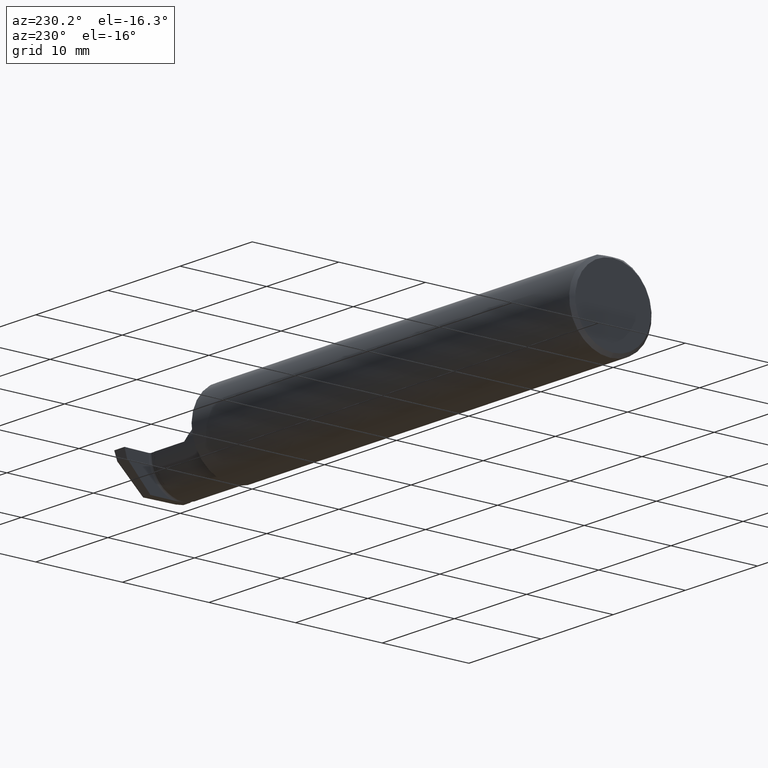
[diagram: clean part render]
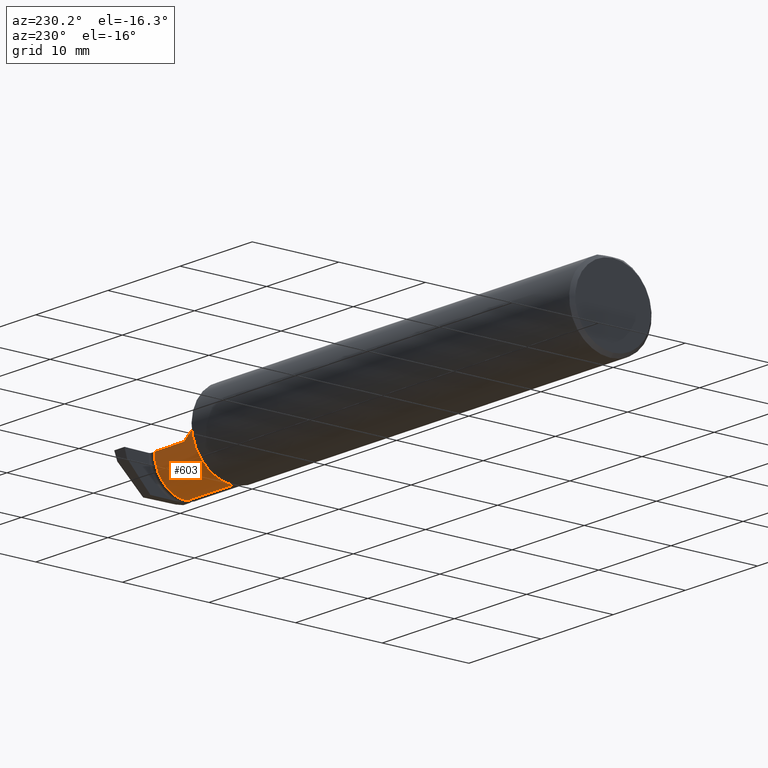
[diagram: same view with one face highlighted and labeled with its STEP entity id]
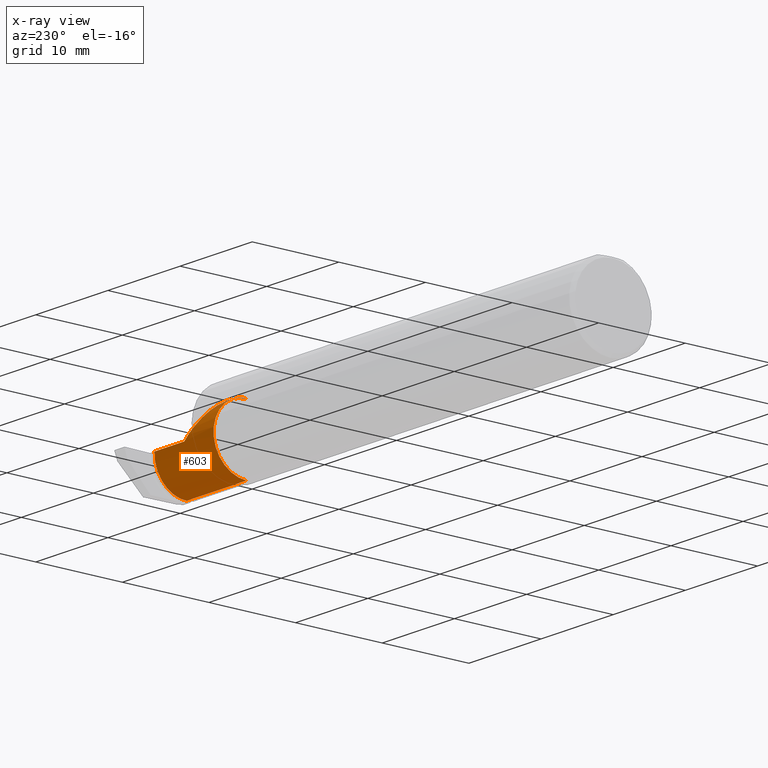
[diagram: x-ray of the same camera — body ghosted, the highlighted face saturated]
A machine part, auxiliary view. The second image highlights one B-rep face of the part: STEP entity #603.
The next image is the same camera in x-ray: the body ghosted, the highlighted face saturated — about 1% of this face is hidden behind the body in this view.
In plain terms, the highlighted cylindrical surface (partial cylindrical patch) has radius 3.81 mm, axis along (-1, -0, -0).
Its self-contained STEP definition (entity closure, byte-faithful):
#31 = ORIENTED_EDGE ( 'NONE', *, *, #769, .T. ) ;
#40 = ORIENTED_EDGE ( 'NONE', *, *, #558, .T. ) ;
#45 = EDGE_CURVE ( 'NONE', #578, #526, #138, .T. ) ;
#57 = CARTESIAN_POINT ( 'NONE',  ( 2.427601074765497469, -0.04414771950626092401, -0.1461247685152796405 ) ) ;
#63 = CARTESIAN_POINT ( 'NONE',  ( 2.427802735541692680, -0.08335000000000178377, -0.1499999999999999667 ) ) ;
#71 = CARTESIAN_POINT ( 'NONE',  ( 2.075000000000000178, -0.08334999999999996578, 0.1499999999999999944 ) ) ;
#87 = CARTESIAN_POINT ( 'NONE',  ( 2.172132034355964691, 0.06665000000000004254, 0.08786796564403576149 ) ) ;
#91 = VERTEX_POINT ( 'NONE', #141 ) ;
#93 = DIRECTION ( 'NONE',  ( 0.000000000000000000, 0.000000000000000000, 1.000000000000000000 ) ) ;
#108 = VERTEX_POINT ( 'NONE', #63 ) ;
#127 = CARTESIAN_POINT ( 'NONE',  ( 2.427195285510840073, -0.01680787243324549304, -0.1347941465764676272 ) ) ;
#136 = CARTESIAN_POINT ( 'NONE',  ( 2.424917640982258149, 0.04676325874620299722, -0.07527902252408270878 ) ) ;
#138 = CIRCLE ( 'NONE', #831, 0.1499999999999999944 ) ;
#141 = CARTESIAN_POINT ( 'NONE',  ( 2.260000000000000231, 0.06665000000000005642, 2.939152317953647352E-17 ) ) ;
#164 = EDGE_CURVE ( 'NONE', #91, #914, #869, .T. ) ;
#198 = ORIENTED_EDGE ( 'NONE', *, *, #389, .F. ) ;
#222 = DIRECTION ( 'NONE',  ( 0.000000000000000000, 0.000000000000000000, 1.000000000000000000 ) ) ;
#239 = VERTEX_POINT ( 'NONE', #823 ) ;
#289 =( BOUNDED_CURVE ( )  B_SPLINE_CURVE ( 3, ( #337, #580, #87, #574 ),
 .UNSPECIFIED., .F., .T. ) 
 B_SPLINE_CURVE_WITH_KNOTS ( ( 4, 4 ),
 ( 0.000000000000000000, 1.570796326794896558 ),
 .UNSPECIFIED. ) 
 CURVE ( )  GEOMETRIC_REPRESENTATION_ITEM ( )  RATIONAL_B_SPLINE_CURVE ( ( 1.000000000000000000, 0.8047378541243649375, 0.8047378541243649375, 1.000000000000000000 ) ) 
 REPRESENTATION_ITEM ( '' )  );
#299 = CARTESIAN_POINT ( 'NONE',  ( 2.427047496117743730, -0.008191918250013479827, -0.1301800487483316948 ) ) ;
#302 = CARTESIAN_POINT ( 'NONE',  ( 2.425778718048109184, 0.02964324835634874963, -0.09913906151157067526 ) ) ;
#332 = DIRECTION ( 'NONE',  ( -1.000000000000000000, -0.000000000000000000, -0.000000000000000000 ) ) ;
#337 = CARTESIAN_POINT ( 'NONE',  ( 2.110000000000001208, -0.08334999999999996578, 0.1499999999999999944 ) ) ;
#346 = VECTOR ( 'NONE', #951, 39.37007874015748143 ) ;
#387 = ORIENTED_EDGE ( 'NONE', *, *, #737, .T. ) ;
#389 = EDGE_CURVE ( 'NONE', #239, #578, #700, .T. ) ;
#431 = AXIS2_PLACEMENT_3D ( 'NONE', #962, #332, #93 ) ;
#443 = LINE ( 'NONE', #906, #498 ) ;
#459 = CARTESIAN_POINT ( 'NONE',  ( 2.424584092740852181, 0.05145648344472079916, -0.06650224096143050878 ) ) ;
#498 = VECTOR ( 'NONE', #749, 39.37007874015748143 ) ;
#507 = EDGE_LOOP ( 'NONE', ( #31, #387, #511, #198, #40, #1017 ) ) ;
#511 = ORIENTED_EDGE ( 'NONE', *, *, #45, .F. ) ;
#526 = VERTEX_POINT ( 'NONE', #983 ) ;
#532 = CARTESIAN_POINT ( 'NONE',  ( 2.422759758555637521, 0.06664999999602221059, -0.01979751688742150892 ) ) ;
#539 = B_SPLINE_CURVE_WITH_KNOTS ( 'NONE', 3,
 ( #930, #532, #855, #459, #136, #682, #302, #920, #1016, #299, #127, #57, #609, #1006 ),
 .UNSPECIFIED., .F., .F.,
 ( 4, 2, 2, 2, 2, 2, 4 ),
 ( 0.000000000000000000, 0.001502808940750334846, 0.002254213411125502702, 0.003005617881500670125, 0.003757022351875837982, 0.004508426822251006272, 0.006011235763001341985 ),
 .UNSPECIFIED. ) ;
#558 = EDGE_CURVE ( 'NONE', #239, #91, #289, .T. ) ;
#568 = CARTESIAN_POINT ( 'NONE',  ( 2.422000000000232856, 0.06664999999976661815, 6.980999480227128532E-18 ) ) ;
#574 = CARTESIAN_POINT ( 'NONE',  ( 2.260000000000000231, 0.06665000000000005642, 2.939152317953647352E-17 ) ) ;
#578 = VERTEX_POINT ( 'NONE', #894 ) ;
#580 = CARTESIAN_POINT ( 'NONE',  ( 2.110000000000001208, 0.004517965644035785294, 0.1500000000000000500 ) ) ;
#603 = ADVANCED_FACE ( 'NONE', ( #975 ), #810, .T. ) ;
#609 = CARTESIAN_POINT ( 'NONE',  ( 2.427823194575347454, -0.06360486144612936821, -0.1500000000000002998 ) ) ;
#650 = CARTESIAN_POINT ( 'NONE',  ( 2.075000000000000178, 0.06665000000000004254, 5.204748896376252548E-17 ) ) ;
#682 = CARTESIAN_POINT ( 'NONE',  ( 2.425501685803163276, 0.03584079102245452120, -0.09159665206315835417 ) ) ;
#700 = LINE ( 'NONE', #71, #706 ) ;
#706 = VECTOR ( 'NONE', #783, 39.37007874015748143 ) ;
#737 = EDGE_CURVE ( 'NONE', #108, #526, #443, .T. ) ;
#749 = DIRECTION ( 'NONE',  ( -1.000000000000000000, -0.000000000000000000, -0.000000000000000000 ) ) ;
#769 = EDGE_CURVE ( 'NONE', #914, #108, #539, .T. ) ;
#783 = DIRECTION ( 'NONE',  ( -1.000000000000000000, -0.000000000000000000, -0.000000000000000000 ) ) ;
#810 = CYLINDRICAL_SURFACE ( 'NONE', #431, 0.1499999999999999944 ) ;
#823 = CARTESIAN_POINT ( 'NONE',  ( 2.110000000000001208, -0.08334999999999996578, 0.1499999999999999944 ) ) ;
#831 = AXIS2_PLACEMENT_3D ( 'NONE', #940, #937, #222 ) ;
#855 = CARTESIAN_POINT ( 'NONE',  ( 2.423485480597537656, 0.06268191132979147873, -0.03944648273120909127 ) ) ;
#869 = LINE ( 'NONE', #650, #346 ) ;
#894 = CARTESIAN_POINT ( 'NONE',  ( 2.100000000000000089, -0.08334999999999996578, 0.1499999999999999944 ) ) ;
#906 = CARTESIAN_POINT ( 'NONE',  ( 2.075000000000000178, -0.08334999999999995191, -0.1499999999999999944 ) ) ;
#914 = VERTEX_POINT ( 'NONE', #568 ) ;
#920 = CARTESIAN_POINT ( 'NONE',  ( 2.426340558372564793, 0.01578456802582615601, -0.1129971907343158138 ) ) ;
#930 = CARTESIAN_POINT ( 'NONE',  ( 2.422000000000232856, 0.06664999999976661815, 6.980999480227128532E-18 ) ) ;
#937 = DIRECTION ( 'NONE',  ( -1.000000000000000000, -0.000000000000000000, -0.000000000000000000 ) ) ;
#940 = CARTESIAN_POINT ( 'NONE',  ( 2.100000000000000089, -0.08334999999999996578, 0.000000000000000000 ) ) ;
#951 = DIRECTION ( 'NONE',  ( 1.000000000000000000, 0.000000000000000000, 0.000000000000000000 ) ) ;
#962 = CARTESIAN_POINT ( 'NONE',  ( 2.075000000000000178, -0.08334999999999996578, 0.000000000000000000 ) ) ;
#975 = FACE_OUTER_BOUND ( 'NONE', #507, .T. ) ;
#983 = CARTESIAN_POINT ( 'NONE',  ( 2.100000000000000089, -0.08334999999999995191, -0.1499999999999999944 ) ) ;
#1006 = CARTESIAN_POINT ( 'NONE',  ( 2.427802735541692680, -0.08335000000000178377, -0.1499999999999999667 ) ) ;
#1016 = CARTESIAN_POINT ( 'NONE',  ( 2.426625743432504922, 0.008070056107604459128, -0.1193229051177439465 ) ) ;
#1017 = ORIENTED_EDGE ( 'NONE', *, *, #164, .T. ) ;